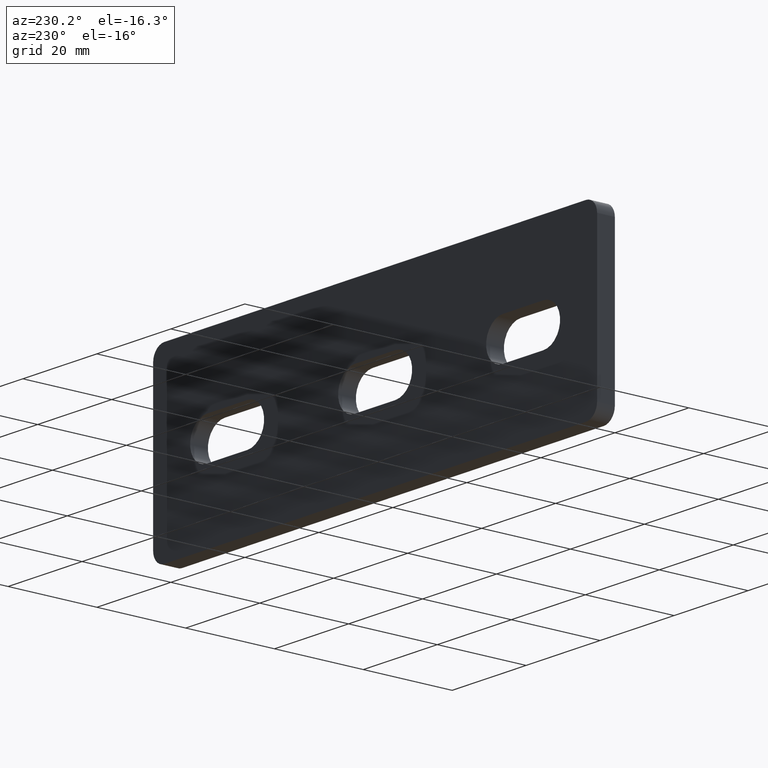
[diagram: clean part render]
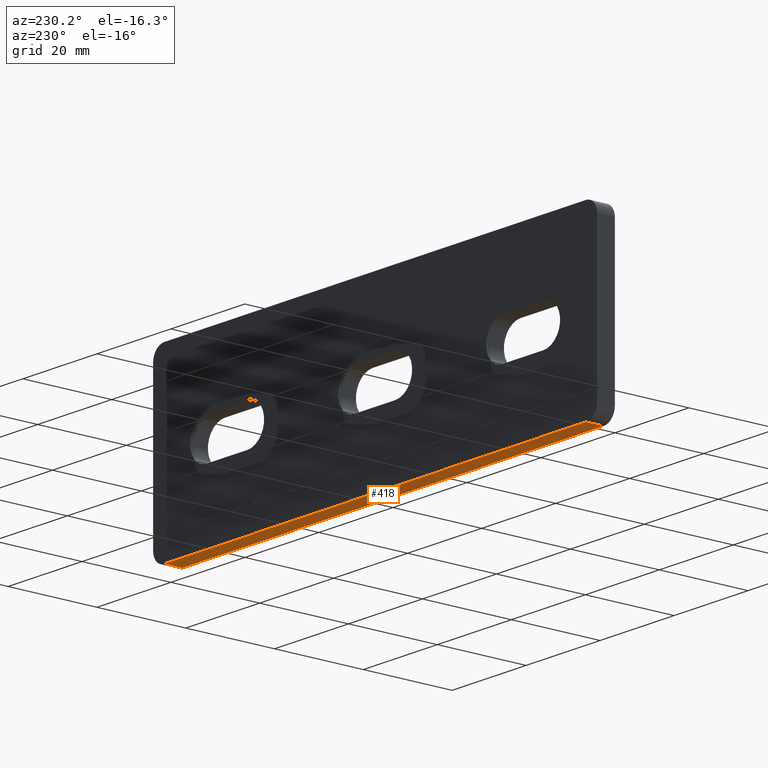
[diagram: same view with one face highlighted and labeled with its STEP entity id]
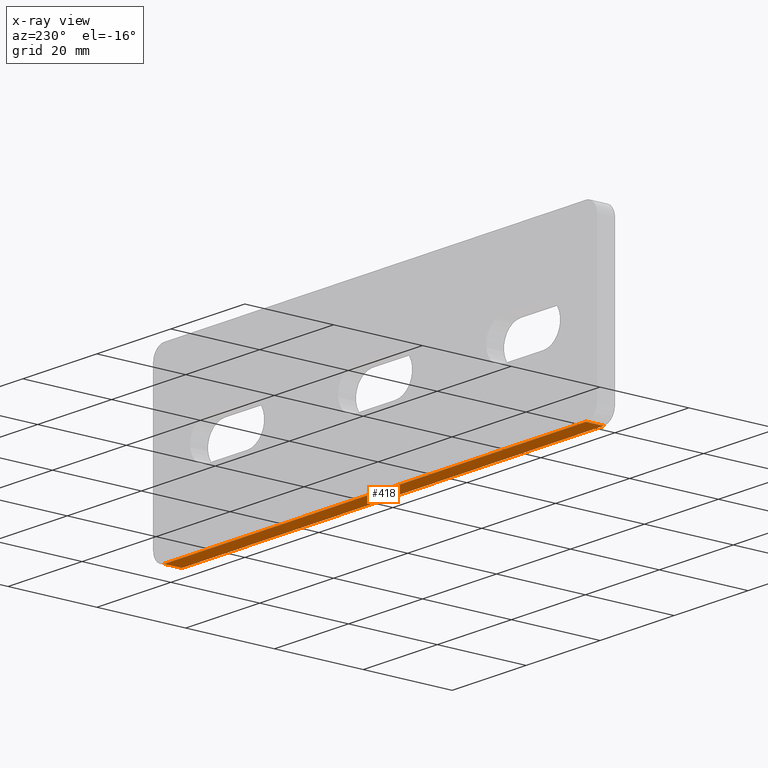
[diagram: x-ray of the same camera — body ghosted, the highlighted face saturated]
A machine part, auxiliary view. The second image highlights one B-rep face of the part: STEP entity #418.
The next image is the same camera in x-ray: the body ghosted, the highlighted face saturated — about 0% of this face is hidden behind the body in this view.
In plain terms, the highlighted planar face has unit normal (0, 0, 1).
Its self-contained STEP definition (entity closure, byte-faithful):
#36=FACE_OUTER_BOUND('',#64,.T.);
#64=EDGE_LOOP('',(#333,#334,#335,#336));
#101=LINE('',#630,#141);
#112=LINE('',#675,#152);
#127=LINE('',#719,#167);
#128=LINE('',#720,#168);
#141=VECTOR('',#504,1000.);
#152=VECTOR('',#539,1000.);
#167=VECTOR('',#580,1000.);
#168=VECTOR('',#581,1000.);
#181=VERTEX_POINT('',#628);
#182=VERTEX_POINT('',#629);
#203=VERTEX_POINT('',#672);
#204=VERTEX_POINT('',#674);
#221=EDGE_CURVE('',#181,#182,#101,.T.);
#243=EDGE_CURVE('',#204,#203,#112,.T.);
#267=EDGE_CURVE('',#203,#182,#127,.T.);
#268=EDGE_CURVE('',#181,#204,#128,.T.);
#333=ORIENTED_EDGE('',*,*,#243,.T.);
#334=ORIENTED_EDGE('',*,*,#267,.T.);
#335=ORIENTED_EDGE('',*,*,#221,.F.);
#336=ORIENTED_EDGE('',*,*,#268,.T.);
#406=PLANE('',#483);
#418=ADVANCED_FACE('',(#36),#406,.F.);
#483=AXIS2_PLACEMENT_3D('',#718,#578,#579);
#504=DIRECTION('',(-1.,-4.93038065763132E-31,4.93038065763132E-32));
#539=DIRECTION('',(-1.,-4.93038065763132E-31,4.93038065763132E-32));
#578=DIRECTION('center_axis',(4.93038065763132E-32,2.43086534291451E-62,
1.));
#579=DIRECTION('ref_axis',(1.,4.93038065763132E-31,-4.93038065763132E-32));
#580=DIRECTION('',(5.66993775627602E-31,1.,0.));
#581=DIRECTION('',(-5.66993775627602E-31,-1.,0.));
#628=CARTESIAN_POINT('',(56.9999999999986,3.99999999999978,-20.));
#629=CARTESIAN_POINT('',(-56.9999999999986,3.99999999999978,-20.0000000000002));
#630=CARTESIAN_POINT('',(-59.9999999999987,3.99999999999978,-20.));
#672=CARTESIAN_POINT('',(-56.9999999999986,0.,-20.0000000000002));
#674=CARTESIAN_POINT('',(56.9999999999986,-2.22044604925031E-13,-20.0000000000005));
#675=CARTESIAN_POINT('',(-59.9999999999987,0.,-20.));
#718=CARTESIAN_POINT('Origin',(-59.9999999999987,3.99999999999978,-20.));
#719=CARTESIAN_POINT('',(-56.9999999999986,3.99999999999978,-20.0000000000002));
#720=CARTESIAN_POINT('',(56.9999999999986,3.99999999999978,-20.));